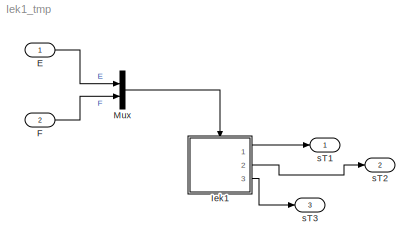
MODEL Iek1_tmp
KIND model
BLOCK [Inport] E
  IconDisplay = Port number
  SID = 10
BLOCK [Inport] F
  IconDisplay = Port number
  Port = 2
  SID = 11
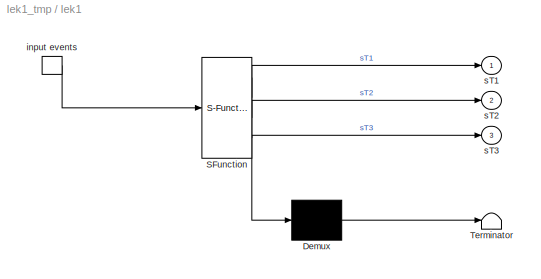
BLOCK [SubSystem] Iek1
  ErrorFcn = Stateflow.Translate.translate
  PermitHierarchicalResolution = ParametersOnly
  Ports = [0, 3, 0, 1]
  RequestExecContextInheritance = off
  SFBlockType = Chart
  SID = 3
  TreatAsAtomicUnit = on
  Variant = off
BLOCK [Demux] Iek1/ Demux 
  Outputs = 1
  Ports = [1, 1]
  SID = 3::12
BLOCK [S-Function] Iek1/ SFunction 
  EnableBusSupport = off
  FunctionName = sf_sfun
  PortCounts = [1 4]
  Ports = [1, 4]
  SFunctionDeploymentMode = off
  SID = 3::11
  Tag = Stateflow S-Function Iek1_tmp 1
BLOCK [Terminator] Iek1/ Terminator 
  SID = 3::13
BLOCK [TriggerPort] Iek1/ input events 
  Ports = [0, 1]
  SID = 3::1
  ShowOutputPort = on
  TriggerType = either
BLOCK [Outport] Iek1/sT1
  IconDisplay = Port number
  SID = 3::8
BLOCK [Outport] Iek1/sT2
  IconDisplay = Port number
  Port = 2
  SID = 3::9
BLOCK [Outport] Iek1/sT3
  IconDisplay = Port number
  Port = 3
  SID = 3::10
BLOCK [Mux] Mux
  DisplayOption = bar
  Inputs = 2
  Ports = [2, 1]
  SID = 6
BLOCK [Outport] sT1
  IconDisplay = Port number
  SID = 7
BLOCK [Outport] sT2
  IconDisplay = Port number
  Port = 2
  SID = 8
BLOCK [Outport] sT3
  IconDisplay = Port number
  Port = 3
  SID = 9
LINE E:1 -> Mux:1
LINE F:1 -> Mux:2
LINE Iek1/ Demux :1 -> Iek1/ Terminator :1
LINE Iek1/ SFunction :1 -> Iek1/ Demux :1
LINE Iek1/ SFunction :2 -> Iek1/sT1:1
LINE Iek1/ SFunction :3 -> Iek1/sT2:1
LINE Iek1/ SFunction :4 -> Iek1/sT3:1
LINE Iek1/ input events :1 -> Iek1/ SFunction :1
LINE Iek1:1 -> sT1:1
LINE Iek1:2 -> sT2:1
LINE Iek1:3 -> sT3:1
LINE Mux:1 -> Iek1:trigger
CHART Iek1 states=11 transitions=13
  STATE_LABEL 'T1'
  STATE_LABEL 'B\\nen: sT1=2'
  STATE_LABEL 'A\\nen: sT1=1'
  STATE_LABEL 'T2'
  STATE_LABEL 'C\\nen: sT2=1'
  STATE_LABEL 'D\\nen: sT2=2'
  STATE_LABEL 'T3'
  STATE_LABEL 'a\\nen: sT3=1'
  STATE_LABEL 'c\\nen: sT3=3'
  STATE_LABEL 'b\\nen: sT3=2'
  STATE_LABEL 'd\\nen: sT3=4'
